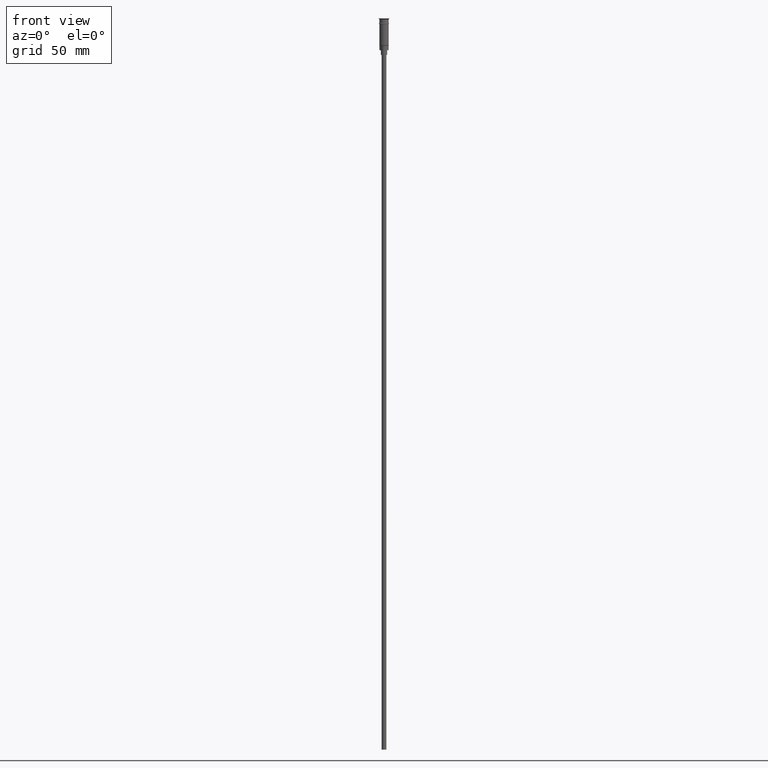
[diagram: clean part render]
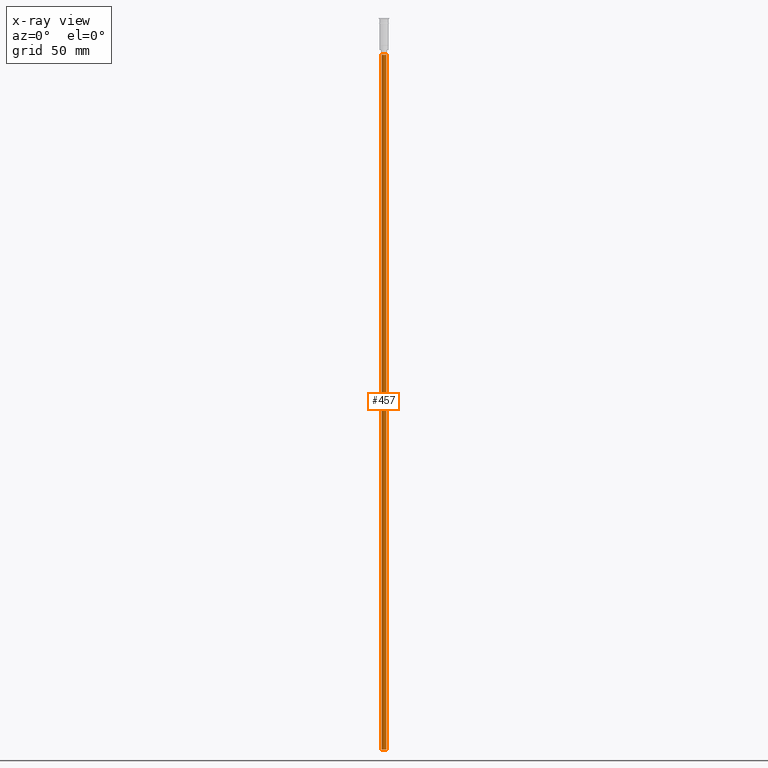
[diagram: x-ray — body ghosted, one internal face saturated and labeled with its STEP entity id]
A machine part, front view, then the same camera in x-ray: the body is ghosted and one INTERNAL B-rep face — a face not visible from any outside direction — is saturated and labeled: STEP entity #457.
In plain terms, the highlighted cylindrical surface (edge-blend (fillet) strip) has radius 1.5 mm, axis along (-0, -0, 1).
Its self-contained STEP definition (entity closure, byte-faithful):
#4 = CARTESIAN_POINT ( 'NONE',  ( 1.500000000000000222, 0.000000000000000000, -23.50000000000000000 ) ) ;
#17 = DIRECTION ( 'NONE',  ( 0.000000000000000000, 0.000000000000000000, -1.000000000000000000 ) ) ;
#43 = CARTESIAN_POINT ( 'NONE',  ( -1.500000000000000222, 1.836970198721030181E-16, -470.5000000000000568 ) ) ;
#51 = EDGE_CURVE ( 'NONE', #1225, #804, #417, .T. ) ;
#99 = VECTOR ( 'NONE', #779, 1000.000000000000000 ) ;
#157 = EDGE_LOOP ( 'NONE', ( #1378, #188, #525, #1494 ) ) ;
#163 = DIRECTION ( 'NONE',  ( 1.000000000000000000, 0.000000000000000000, 0.000000000000000000 ) ) ;
#176 = CIRCLE ( 'NONE', #447, 1.500000000000000222 ) ;
#188 = ORIENTED_EDGE ( 'NONE', *, *, #51, .F. ) ;
#195 = EDGE_CURVE ( 'NONE', #379, #972, #176, .T. ) ;
#198 = CYLINDRICAL_SURFACE ( 'NONE', #927, 1.500000000000000222 ) ;
#227 = DIRECTION ( 'NONE',  ( -0.000000000000000000, -0.000000000000000000, 1.000000000000000000 ) ) ;
#283 = DIRECTION ( 'NONE',  ( -0.000000000000000000, -0.000000000000000000, 1.000000000000000000 ) ) ;
#379 = VERTEX_POINT ( 'NONE', #4 ) ;
#383 = EDGE_CURVE ( 'NONE', #804, #972, #1018, .T. ) ;
#417 = CIRCLE ( 'NONE', #874, 1.500000000000000222 ) ;
#447 = AXIS2_PLACEMENT_3D ( 'NONE', #1076, #810, #682 ) ;
#457 = ADVANCED_FACE ( 'NONE', ( #1330 ), #198, .T. ) ;
#525 = ORIENTED_EDGE ( 'NONE', *, *, #679, .T. ) ;
#527 = CARTESIAN_POINT ( 'NONE',  ( 1.500000000000000222, 0.000000000000000000, -470.5000000000000568 ) ) ;
#679 = EDGE_CURVE ( 'NONE', #1225, #379, #1150, .T. ) ;
#682 = DIRECTION ( 'NONE',  ( -1.000000000000000000, 0.000000000000000000, 0.000000000000000000 ) ) ;
#711 = CARTESIAN_POINT ( 'NONE',  ( 0.000000000000000000, 0.000000000000000000, -470.5000000000000568 ) ) ;
#779 = DIRECTION ( 'NONE',  ( -0.000000000000000000, -0.000000000000000000, 1.000000000000000000 ) ) ;
#787 = CARTESIAN_POINT ( 'NONE',  ( 1.500000000000000222, 0.000000000000000000, -470.5000000000000568 ) ) ;
#804 = VERTEX_POINT ( 'NONE', #43 ) ;
#810 = DIRECTION ( 'NONE',  ( 0.000000000000000000, 0.000000000000000000, -1.000000000000000000 ) ) ;
#874 = AXIS2_PLACEMENT_3D ( 'NONE', #890, #17, #1513 ) ;
#890 = CARTESIAN_POINT ( 'NONE',  ( 0.000000000000000000, 0.000000000000000000, -470.5000000000000568 ) ) ;
#927 = AXIS2_PLACEMENT_3D ( 'NONE', #711, #283, #163 ) ;
#968 = CARTESIAN_POINT ( 'NONE',  ( -1.500000000000000222, 1.836970198721030181E-16, -23.50000000000000000 ) ) ;
#972 = VERTEX_POINT ( 'NONE', #968 ) ;
#1018 = LINE ( 'NONE', #1506, #99 ) ;
#1076 = CARTESIAN_POINT ( 'NONE',  ( 0.000000000000000000, 0.000000000000000000, -23.50000000000000000 ) ) ;
#1150 = LINE ( 'NONE', #787, #1579 ) ;
#1225 = VERTEX_POINT ( 'NONE', #527 ) ;
#1330 = FACE_OUTER_BOUND ( 'NONE', #157, .T. ) ;
#1378 = ORIENTED_EDGE ( 'NONE', *, *, #383, .F. ) ;
#1494 = ORIENTED_EDGE ( 'NONE', *, *, #195, .T. ) ;
#1506 = CARTESIAN_POINT ( 'NONE',  ( -1.500000000000000222, 1.836970198721030181E-16, -470.5000000000000568 ) ) ;
#1513 = DIRECTION ( 'NONE',  ( -1.000000000000000000, 0.000000000000000000, 0.000000000000000000 ) ) ;
#1579 = VECTOR ( 'NONE', #227, 1000.000000000000000 ) ;